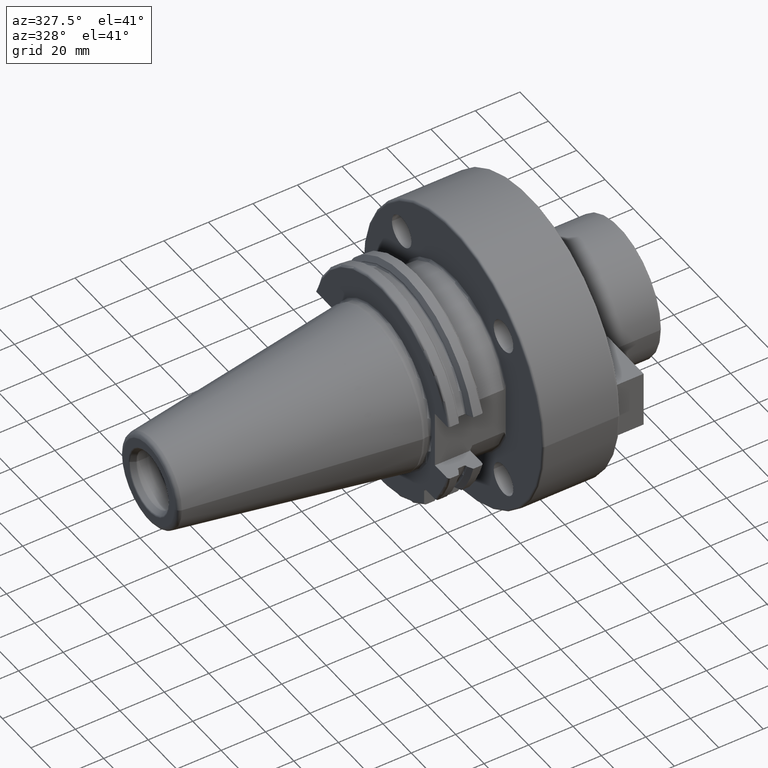
[diagram: clean part render]
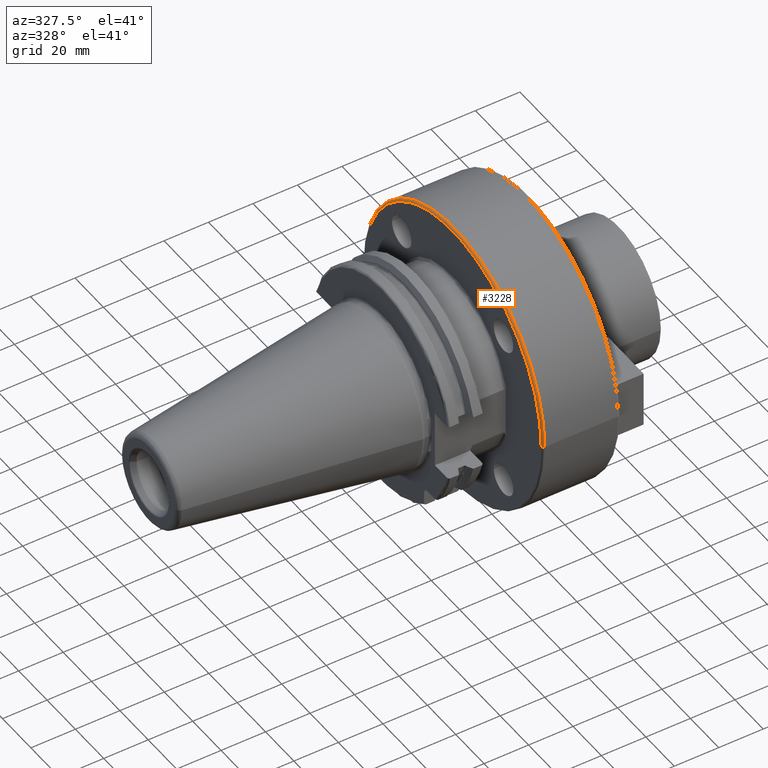
[diagram: same view with one face highlighted and labeled with its STEP entity id]
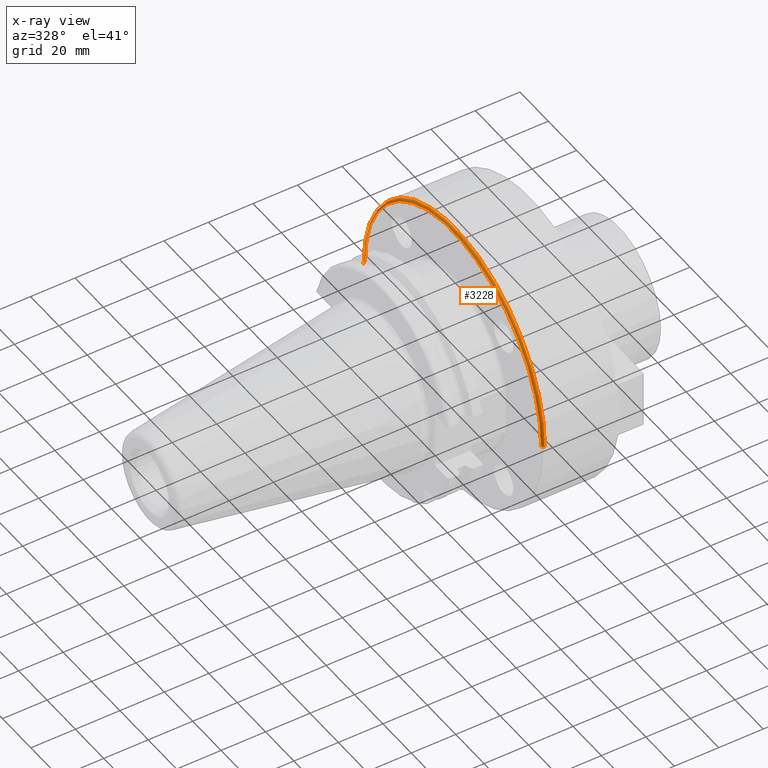
[diagram: x-ray of the same camera — body ghosted, the highlighted face saturated]
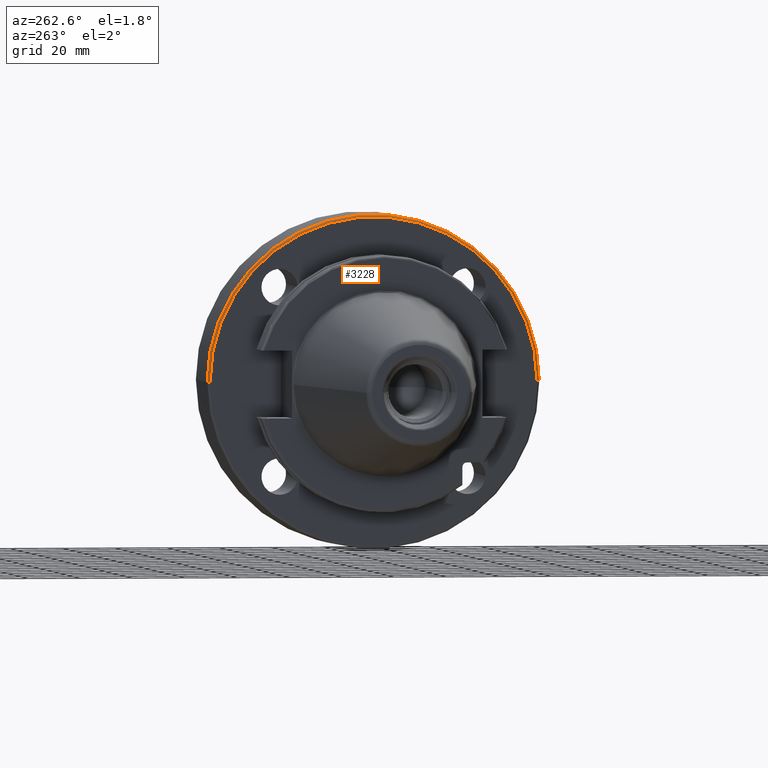
[diagram: same view with one face highlighted and labeled with its STEP entity id]
A machine part, auxiliary view. The second image highlights one B-rep face of the part: STEP entity #3228.
The next image is the same camera in x-ray: the body ghosted, the highlighted face saturated — about 1% of this face is hidden behind the body in this view.
A second angle (auxiliary view) of the same face is appended — the face is thin or edge-on in the first view.
In plain terms, the highlighted toroidal blend (fillet) surface has major radius 62.5 mm and minor (blend) radius 1 mm.
Its self-contained STEP definition (entity closure, byte-faithful):
#206=CARTESIAN_POINT('',(3.505E1,0.E0,0.E0));
#207=DIRECTION('',(1.E0,0.E0,0.E0));
#208=DIRECTION('',(0.E0,1.E0,0.E0));
#209=AXIS2_PLACEMENT_3D('',#206,#207,#208);
#1153=CARTESIAN_POINT('',(3.605E1,-6.25E1,5.979855499660E-12));
#1154=DIRECTION('',(0.E0,-9.567780595576E-14,-1.E0));
#1155=DIRECTION('',(0.E0,-1.E0,9.567780595576E-14));
#1156=AXIS2_PLACEMENT_3D('',#1153,#1154,#1155);
#1176=CARTESIAN_POINT('',(3.605E1,0.E0,0.E0));
#1177=DIRECTION('',(1.E0,0.E0,0.E0));
#1178=DIRECTION('',(0.E0,1.E0,0.E0));
#1179=AXIS2_PLACEMENT_3D('',#1176,#1177,#1178);
#1186=CARTESIAN_POINT('',(3.605E1,6.25E1,-5.959788218490E-12));
#1187=DIRECTION('',(0.E0,9.535644843184E-14,1.E0));
#1188=DIRECTION('',(0.E0,1.E0,-9.535644843184E-14));
#1189=AXIS2_PLACEMENT_3D('',#1186,#1187,#1188);
#2046=CARTESIAN_POINT('',(3.605E1,-6.35E1,-1.555301434917E-14));
#2047=CARTESIAN_POINT('',(3.605E1,6.35E1,0.E0));
#2048=VERTEX_POINT('',#2046);
#2049=VERTEX_POINT('',#2047);
#2050=CARTESIAN_POINT('',(3.505E1,-6.25E1,-1.421085471520E-14));
#2051=CARTESIAN_POINT('',(3.505E1,6.25E1,3.431238783616E-14));
#2052=VERTEX_POINT('',#2050);
#2053=VERTEX_POINT('',#2051);
#3217=CARTESIAN_POINT('',(3.605E1,0.E0,0.E0));
#3218=DIRECTION('',(1.E0,0.E0,0.E0));
#3219=DIRECTION('',(0.E0,9.999967784403E-1,-2.538327982866E-3));
#3220=AXIS2_PLACEMENT_3D('',#3217,#3218,#3219);
#3221=TOROIDAL_SURFACE('',#3220,6.25E1,1.E0);
#3222=ORIENTED_EDGE('',*,*,#3208,.T.);
#3223=ORIENTED_EDGE('',*,*,#3183,.T.);
#3224=ORIENTED_EDGE('',*,*,#2343,.F.);
#3225=ORIENTED_EDGE('',*,*,#3180,.F.);
#3226=EDGE_LOOP('',(#3222,#3223,#3224,#3225));
#3227=FACE_OUTER_BOUND('',#3226,.F.);
#3228=ADVANCED_FACE('',(#3227),#3221,.T.);
#210=CIRCLE('',#209,6.25E1);
#1157=CIRCLE('',#1156,1.E0);
#1180=CIRCLE('',#1179,6.35E1);
#1190=CIRCLE('',#1189,1.E0);
#2343=EDGE_CURVE('',#2053,#2052,#210,.T.);
#3180=EDGE_CURVE('',#2049,#2053,#1190,.T.);
#3183=EDGE_CURVE('',#2048,#2052,#1157,.T.);
#3208=EDGE_CURVE('',#2049,#2048,#1180,.T.);